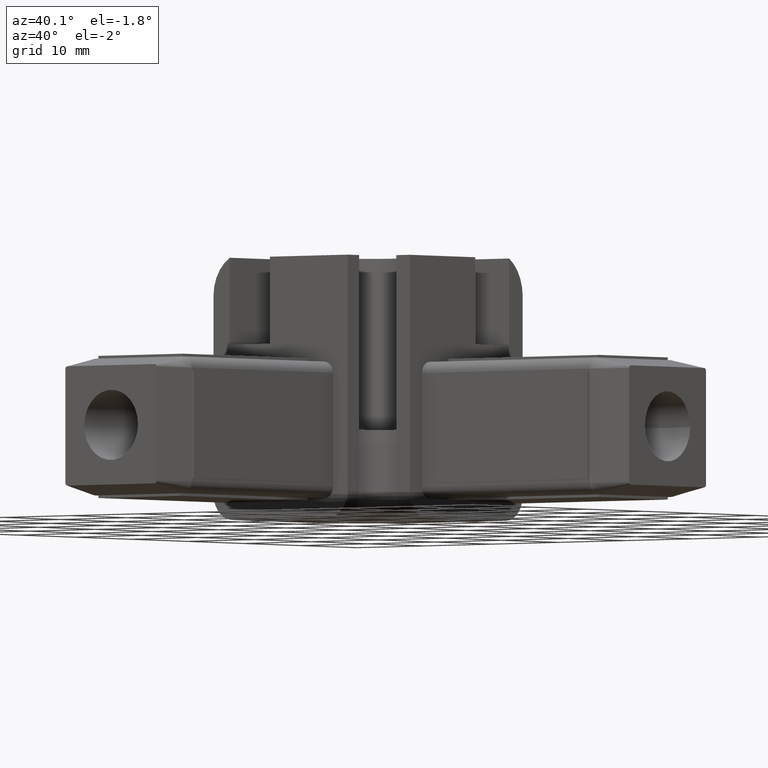
[diagram: clean part render]
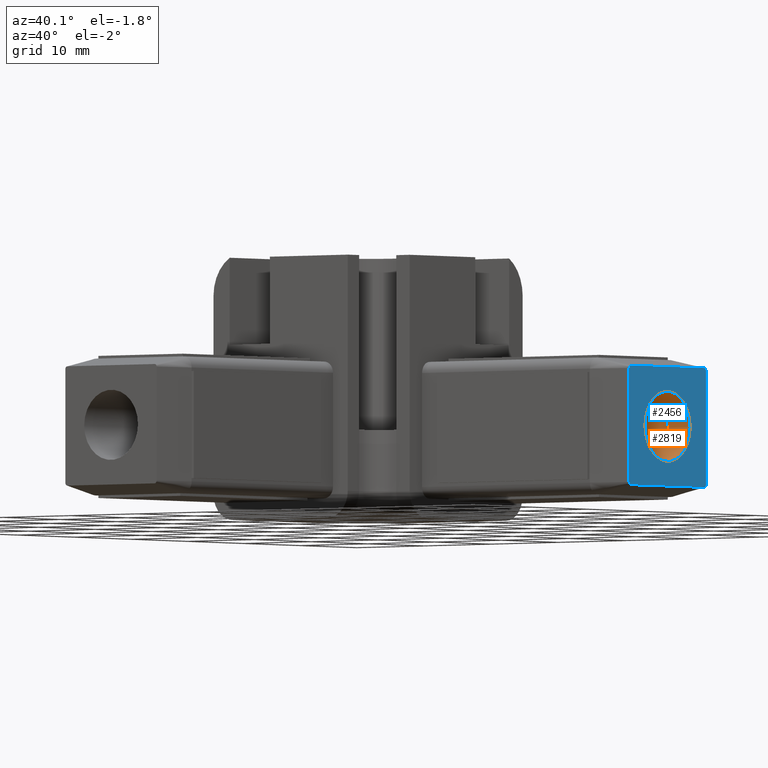
[diagram: same view with the hole feature highlighted: cylindrical wall and planar end face, labeled with their STEP entity ids]
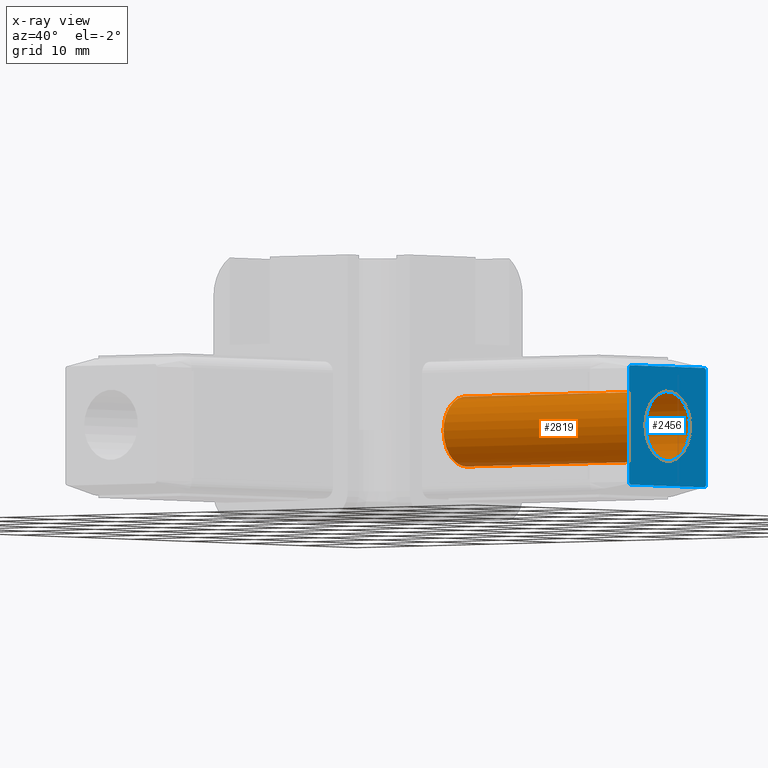
[diagram: x-ray of the same camera — body ghosted, the hole faces saturated]
A machine part, auxiliary view. The highlighted faces form one hole feature of diameter 8 mm: the cylindrical wall (entity #2819, orange) and its adjacent planar end face (entity #2456, blue) — they share a circular edge in the B-rep.
The next image is the same camera in x-ray (body ghosted, the hole faces saturated) — the bore reads through the body.
Wall:
#2436=CARTESIAN_POINT('',(0.0,-4.000000000000114,0.0));
#2437=VERTEX_POINT('',#2436);
#2438=CARTESIAN_POINT('',(0.0,4.000000000000114,0.0));
#2439=VERTEX_POINT('',#2438);
#2440=CARTESIAN_POINT('',(0.0,0.0,0.0));
#2441=DIRECTION('',(1.0,0.0,0.0));
#2442=DIRECTION('',(0.0,1.0,0.0));
#2443=AXIS2_PLACEMENT_3D('',#2440,#2441,#2442);
#2444=CIRCLE('',#2443,4.000000000000114);
#2445=EDGE_CURVE('',#2437,#2439,#2444,.T.);
#2447=CARTESIAN_POINT('',(0.0,0.0,0.0));
#2448=DIRECTION('',(1.0,0.0,0.0));
#2449=DIRECTION('',(0.0,1.0,0.0));
#2450=AXIS2_PLACEMENT_3D('',#2447,#2448,#2449);
#2451=CIRCLE('',#2450,4.000000000000114);
#2452=EDGE_CURVE('',#2439,#2437,#2451,.T.);
#2785=CARTESIAN_POINT('',(0.0,0.0,0.0));
#2786=DIRECTION('',(1.0,0.0,0.0));
#2787=DIRECTION('',(0.0,1.0,0.0));
#2788=AXIS2_PLACEMENT_3D('',#2785,#2786,#2787);
#2789=CYLINDRICAL_SURFACE('',#2788,4.000000000000114);
#2790=CARTESIAN_POINT('',(-29.999990346764093,-4.000000000000114,0.0));
#2791=VERTEX_POINT('',#2790);
#2792=CARTESIAN_POINT('',(-29.999990346764093,4.000000000000114,0.0));
#2793=VERTEX_POINT('',#2792);
#2794=CARTESIAN_POINT('',(-29.999990346764093,0.0,0.0));
#2795=DIRECTION('',(1.0,0.0,0.0));
#2796=DIRECTION('',(0.0,1.0,0.0));
#2797=AXIS2_PLACEMENT_3D('',#2794,#2795,#2796);
#2798=CIRCLE('',#2797,4.000000000000114);
#2799=EDGE_CURVE('',#2791,#2793,#2798,.T.);
#2800=ORIENTED_EDGE('',*,*,#2799,.F.);
#2801=CARTESIAN_POINT('',(-29.999990346764093,0.0,0.0));
#2802=DIRECTION('',(1.0,0.0,0.0));
#2803=DIRECTION('',(0.0,1.0,0.0));
#2804=AXIS2_PLACEMENT_3D('',#2801,#2802,#2803);
#2805=CIRCLE('',#2804,4.000000000000114);
#2806=EDGE_CURVE('',#2793,#2791,#2805,.T.);
#2807=ORIENTED_EDGE('',*,*,#2806,.F.);
#2808=CARTESIAN_POINT('',(0.0,4.000000000000114,0.0));
#2809=DIRECTION('',(-1.0,0.0,0.0));
#2810=VECTOR('',#2809,29.999990346764093);
#2811=LINE('',#2808,#2810);
#2812=EDGE_CURVE('',#2439,#2793,#2811,.T.);
#2813=ORIENTED_EDGE('',*,*,#2812,.F.);
#2814=ORIENTED_EDGE('',*,*,#2452,.T.);
#2815=ORIENTED_EDGE('',*,*,#2445,.T.);
#2816=ORIENTED_EDGE('',*,*,#2812,.T.);
#2817=EDGE_LOOP('',(#2800,#2807,#2813,#2814,#2815,#2816));
#2818=FACE_OUTER_BOUND('',#2817,.T.);
#2819=ADVANCED_FACE('',(#2818),#2789,.F.);
End face:
#2111=CARTESIAN_POINT('',(0.0,-6.503059143940305,-6.800190513472306));
#2112=VERTEX_POINT('',#2111);
#2121=CARTESIAN_POINT('',(0.0,-6.799999985097259,-6.492702063160188));
#2122=VERTEX_POINT('',#2121);
#2123=CARTESIAN_POINT('',(0.0,-6.492324204442724,-6.492702063160188));
#2124=DIRECTION('',(1.0,0.0,0.0));
#2125=DIRECTION('',(0.0,-1.0,0.0));
#2126=AXIS2_PLACEMENT_3D('',#2123,#2124,#2125);
#2127=CIRCLE('',#2126,0.307675780654510);
#2128=EDGE_CURVE('',#2122,#2112,#2127,.T.);
#2164=CARTESIAN_POINT('',(0.0,6.492663622970127,-6.800190513472300));
#2165=VERTEX_POINT('',#2164);
#2172=CARTESIAN_POINT('',(0.0,-6.503059143940305,-6.800190513472302));
#2173=DIRECTION('',(0.0,1.0,0.0));
#2174=VECTOR('',#2173,12.995722766910433);
#2175=LINE('',#2172,#2174);
#2176=EDGE_CURVE('',#2112,#2165,#2175,.T.);
#2222=CARTESIAN_POINT('',(0.0,-6.799999985097259,6.481368643911095));
#2223=VERTEX_POINT('',#2222);
#2232=CARTESIAN_POINT('',(0.0,-6.470219850950343,6.800095249615939));
#2233=VERTEX_POINT('',#2232);
#2234=CARTESIAN_POINT('',(0.0,-6.470219850950315,6.470123445729424));
#2235=DIRECTION('',(1.0,0.0,0.0));
#2236=DIRECTION('',(0.0,0.0,1.0));
#2237=AXIS2_PLACEMENT_3D('',#2234,#2235,#2236);
#2238=CIRCLE('',#2237,0.329971803886516);
#2239=EDGE_CURVE('',#2233,#2223,#2238,.T.);
#2274=CARTESIAN_POINT('',(0.0,-6.799999985097259,6.481368643911095));
#2275=DIRECTION('',(0.0,0.0,-1.0));
#2276=VECTOR('',#2275,12.974070707071283);
#2277=LINE('',#2274,#2276);
#2278=EDGE_CURVE('',#2223,#2122,#2277,.T.);
#2313=CARTESIAN_POINT('',(0.0,6.800114465060005,-6.505263641605332));
#2314=VERTEX_POINT('',#2313);
#2325=CARTESIAN_POINT('',(0.0,6.492663622970127,-6.492473758294965));
#2326=DIRECTION('',(1.0,0.0,0.0));
#2327=DIRECTION('',(0.0,0.0,-1.0));
#2328=AXIS2_PLACEMENT_3D('',#2325,#2326,#2327);
#2329=CIRCLE('',#2328,0.307716755177335);
#2330=EDGE_CURVE('',#2165,#2314,#2329,.T.);
#2368=CARTESIAN_POINT('',(0.0,6.800114465060005,6.492768504121904));
#2369=VERTEX_POINT('',#2368);
#2376=CARTESIAN_POINT('',(0.0,6.800114465060005,-6.505263641605332));
#2377=DIRECTION('',(0.0,0.0,1.0));
#2378=VECTOR('',#2377,12.998032145727237);
#2379=LINE('',#2376,#2378);
#2380=EDGE_CURVE('',#2314,#2369,#2379,.T.);
#2408=CARTESIAN_POINT('',(0.0,-9.360023448030717,-9.360231107697778));
#2409=DIRECTION('',(1.0,0.0,0.0));
#2410=DIRECTION('',(0.0,1.0,0.0));
#2411=AXIS2_PLACEMENT_3D('',#2408,#2409,#2410);
#2412=PLANE('',#2411);
#2413=CARTESIAN_POINT('',(0.0,6.492787719565968,6.800095249615941));
#2414=VERTEX_POINT('',#2413);
#2415=CARTESIAN_POINT('',(0.0,6.492787719565968,6.492768504121903));
#2416=DIRECTION('',(1.0,0.0,0.0));
#2417=DIRECTION('',(0.0,1.0,0.0));
#2418=AXIS2_PLACEMENT_3D('',#2415,#2416,#2417);
#2419=CIRCLE('',#2418,0.307326745494038);
#2420=EDGE_CURVE('',#2369,#2414,#2419,.T.);
#2421=ORIENTED_EDGE('',*,*,#2420,.T.);
#2422=CARTESIAN_POINT('',(0.0,6.492787719565968,6.800095249615943));
#2423=DIRECTION('',(0.0,-1.0,0.0));
#2424=VECTOR('',#2423,12.963007570516311);
#2425=LINE('',#2422,#2424);
#2426=EDGE_CURVE('',#2414,#2233,#2425,.T.);
#2427=ORIENTED_EDGE('',*,*,#2426,.T.);
#2428=ORIENTED_EDGE('',*,*,#2239,.T.);
#2429=ORIENTED_EDGE('',*,*,#2278,.T.);
#2430=ORIENTED_EDGE('',*,*,#2128,.T.);
#2431=ORIENTED_EDGE('',*,*,#2176,.T.);
#2432=ORIENTED_EDGE('',*,*,#2330,.T.);
#2433=ORIENTED_EDGE('',*,*,#2380,.T.);
#2434=EDGE_LOOP('',(#2421,#2427,#2428,#2429,#2430,#2431,#2432,#2433));
#2435=FACE_OUTER_BOUND('',#2434,.T.);
#2436=CARTESIAN_POINT('',(0.0,-4.000000000000114,0.0));
#2437=VERTEX_POINT('',#2436);
#2438=CARTESIAN_POINT('',(0.0,4.000000000000114,0.0));
#2439=VERTEX_POINT('',#2438);
#2440=CARTESIAN_POINT('',(0.0,0.0,0.0));
#2441=DIRECTION('',(1.0,0.0,0.0));
#2442=DIRECTION('',(0.0,1.0,0.0));
#2443=AXIS2_PLACEMENT_3D('',#2440,#2441,#2442);
#2444=CIRCLE('',#2443,4.000000000000114);
#2445=EDGE_CURVE('',#2437,#2439,#2444,.T.);
#2446=ORIENTED_EDGE('',*,*,#2445,.F.);
#2447=CARTESIAN_POINT('',(0.0,0.0,0.0));
#2448=DIRECTION('',(1.0,0.0,0.0));
#2449=DIRECTION('',(0.0,1.0,0.0));
#2450=AXIS2_PLACEMENT_3D('',#2447,#2448,#2449);
#2451=CIRCLE('',#2450,4.000000000000114);
#2452=EDGE_CURVE('',#2439,#2437,#2451,.T.);
#2453=ORIENTED_EDGE('',*,*,#2452,.F.);
#2454=EDGE_LOOP('',(#2446,#2453));
#2455=FACE_BOUND('',#2454,.T.);
#2456=ADVANCED_FACE('',(#2435,#2455),#2412,.T.);